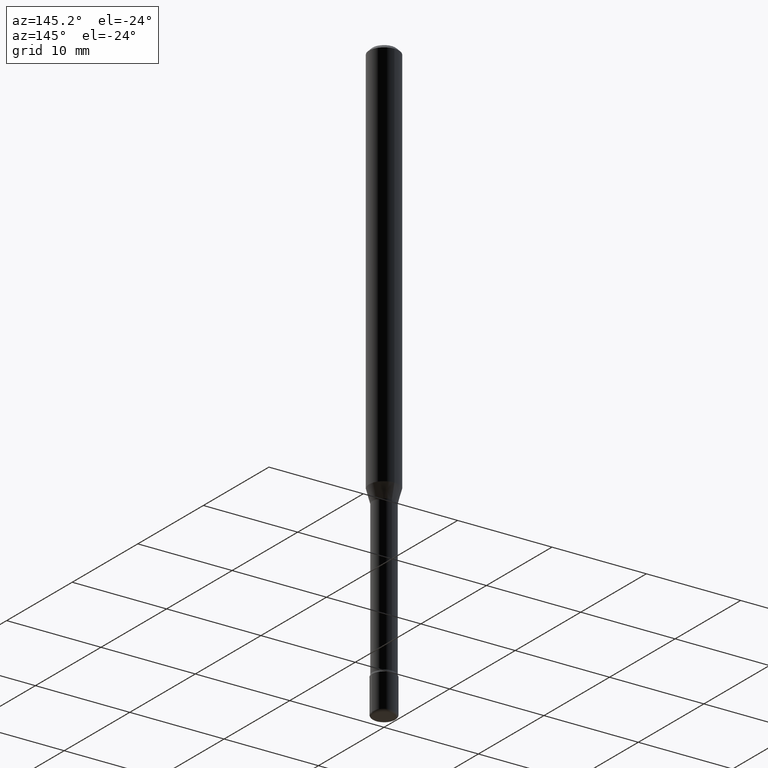
[diagram: clean part render]
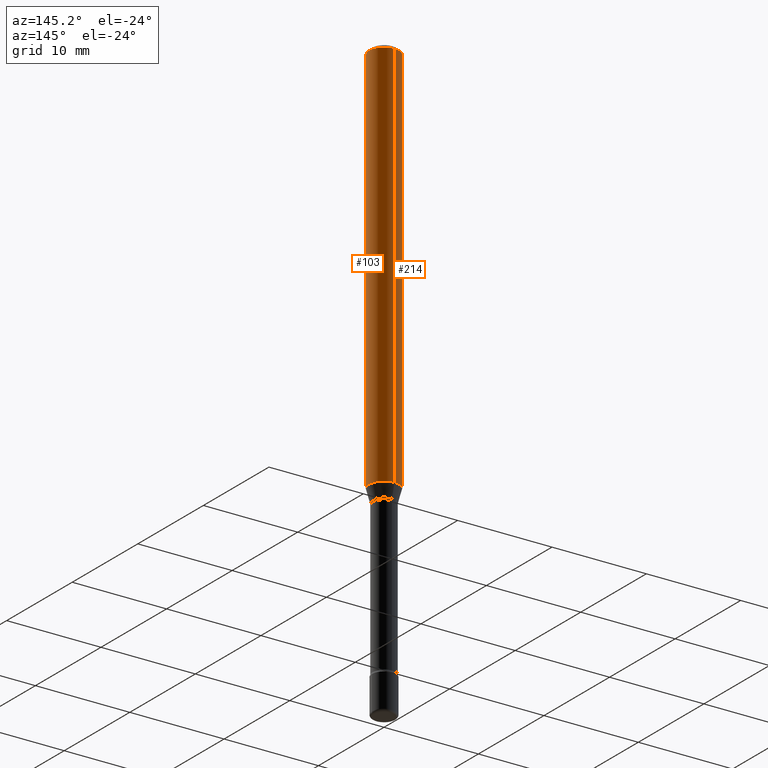
[diagram: same view with one multi-face feature highlighted, each face labeled with its STEP entity id]
A machine part, auxiliary view. The highlighted faces form ONE feature: a constant-radius fillet chain: 2 tangent blend faces with common blend radius 1.5875 mm. The faces share edges in the B-rep.
Their STEP definitions:
[1] entity #214 (Cylinder):
#1 = CARTESIAN_POINT ( 'NONE',  ( -1.169113584055446105E-44, 1.669184350826100908E-30, 4.780733988912460139E-16 ) ) ;
#38 = DIRECTION ( 'NONE',  ( -2.445541428082492260E-29, 3.491377340152750324E-15, 1.000000000000000000 ) ) ;
#88 = AXIS2_PLACEMENT_3D ( 'NONE', #1, #179, #345 ) ;
#90 = ORIENTED_EDGE ( 'NONE', *, *, #119, .T. ) ;
#92 = CARTESIAN_POINT ( 'NONE',  ( -4.364351673553912750E-16, -0.06250000000000005551, -0.01499999999999981036 ) ) ;
#119 = EDGE_CURVE ( 'NONE', #304, #502, #146, .T. ) ;
#146 = CIRCLE ( 'NONE', #325, 0.06250000000000000000 ) ;
#149 = CARTESIAN_POINT ( 'NONE',  ( -4.364351673553512403E-16, -0.06250000000000570377, -1.642153212482682312 ) ) ;
#160 = ORIENTED_EDGE ( 'NONE', *, *, #350, .F. ) ;
#179 = DIRECTION ( 'NONE',  ( -2.445541428082492260E-29, 3.491377340152750324E-15, 1.000000000000000000 ) ) ;
#214 = ADVANCED_FACE ( 'NONE', ( #440 ), #215, .T. ) ;
#215 = CYLINDRICAL_SURFACE ( 'NONE', #88, 0.06250000000000000000 ) ;
#226 = EDGE_CURVE ( 'NONE', #502, #248, #484, .T. ) ;
#248 = VERTEX_POINT ( 'NONE', #92 ) ;
#293 = EDGE_CURVE ( 'NONE', #304, #523, #370, .T. ) ;
#297 = DIRECTION ( 'NONE',  ( -2.445541428082492260E-29, 3.491377340152750324E-15, 1.000000000000000000 ) ) ;
#303 = DIRECTION ( 'NONE',  ( -6.982962677686265922E-15, -1.000000000000000000, 4.370956789862821150E-15 ) ) ;
#304 = VERTEX_POINT ( 'NONE', #459 ) ;
#315 = CARTESIAN_POINT ( 'NONE',  ( 3.668312142123745187E-31, -5.237066010229135864E-17, -0.01500000000000002720 ) ) ;
#325 = AXIS2_PLACEMENT_3D ( 'NONE', #398, #297, #303 ) ;
#326 = CARTESIAN_POINT ( 'NONE',  ( 4.440892098500625669E-16, 0.06250000000000000000, 2.598623151316991680E-16 ) ) ;
#333 = CARTESIAN_POINT ( 'NONE',  ( 4.440892098501030453E-16, 0.06249999999999995143, -0.01500000000000024578 ) ) ;
#342 = EDGE_LOOP ( 'NONE', ( #355, #90, #368, #160 ) ) ;
#345 = DIRECTION ( 'NONE',  ( -6.982962677686265922E-15, -1.000000000000000000, 3.491377340152751112E-15 ) ) ;
#350 = EDGE_CURVE ( 'NONE', #523, #248, #394, .T. ) ;
#355 = ORIENTED_EDGE ( 'NONE', *, *, #293, .F. ) ;
#368 = ORIENTED_EDGE ( 'NONE', *, *, #226, .T. ) ;
#370 = LINE ( 'NONE', #326, #539 ) ;
#380 = AXIS2_PLACEMENT_3D ( 'NONE', #315, #536, #533 ) ;
#394 = CIRCLE ( 'NONE', #380, 0.06250000000000000000 ) ;
#398 = CARTESIAN_POINT ( 'NONE',  ( 4.015953712385151571E-29, -5.733376515121082978E-15, -1.642153212482682756 ) ) ;
#417 = DIRECTION ( 'NONE',  ( -2.445541428082492260E-29, 3.491377340152750324E-15, 1.000000000000000000 ) ) ;
#419 = VECTOR ( 'NONE', #38, 39.37007874015748143 ) ;
#440 = FACE_OUTER_BOUND ( 'NONE', #342, .T. ) ;
#459 = CARTESIAN_POINT ( 'NONE',  ( 4.440892098501028481E-16, 0.06249999999999429623, -1.642153212482682978 ) ) ;
#484 = LINE ( 'NONE', #490, #419 ) ;
#490 = CARTESIAN_POINT ( 'NONE',  ( -4.364351673553916201E-16, -0.06250000000000000000, 6.962844826507930571E-16 ) ) ;
#502 = VERTEX_POINT ( 'NONE', #149 ) ;
#523 = VERTEX_POINT ( 'NONE', #333 ) ;
#533 = DIRECTION ( 'NONE',  ( -6.982962677686265922E-15, -1.000000000000000000, 3.483106191921935554E-15 ) ) ;
#536 = DIRECTION ( 'NONE',  ( -2.445541428082492260E-29, 3.491377340152750324E-15, 1.000000000000000000 ) ) ;
#539 = VECTOR ( 'NONE', #417, 39.37007874015748143 ) ;
[2] entity #103 (Cylinder):
#38 = DIRECTION ( 'NONE',  ( -2.445541428082492260E-29, 3.491377340152750324E-15, 1.000000000000000000 ) ) ;
#51 = DIRECTION ( 'NONE',  ( -6.982962677686265922E-15, -1.000000000000000000, 3.483106191921935554E-15 ) ) ;
#76 = CARTESIAN_POINT ( 'NONE',  ( -1.169113584055446105E-44, 1.669184350826100908E-30, 4.780733988912460139E-16 ) ) ;
#81 = DIRECTION ( 'NONE',  ( -2.445541428082492260E-29, 3.491377340152750324E-15, 1.000000000000000000 ) ) ;
#92 = CARTESIAN_POINT ( 'NONE',  ( -4.364351673553912750E-16, -0.06250000000000005551, -0.01499999999999981036 ) ) ;
#103 = ADVANCED_FACE ( 'NONE', ( #117 ), #482, .T. ) ;
#117 = FACE_OUTER_BOUND ( 'NONE', #488, .T. ) ;
#149 = CARTESIAN_POINT ( 'NONE',  ( -4.364351673553512403E-16, -0.06250000000000570377, -1.642153212482682312 ) ) ;
#158 = EDGE_CURVE ( 'NONE', #502, #304, #218, .T. ) ;
#166 = EDGE_CURVE ( 'NONE', #248, #523, #294, .T. ) ;
#212 = DIRECTION ( 'NONE',  ( -6.982962677686265922E-15, -1.000000000000000000, 3.491377340152751112E-15 ) ) ;
#218 = CIRCLE ( 'NONE', #237, 0.06250000000000000000 ) ;
#226 = EDGE_CURVE ( 'NONE', #502, #248, #484, .T. ) ;
#237 = AXIS2_PLACEMENT_3D ( 'NONE', #537, #256, #454 ) ;
#244 = AXIS2_PLACEMENT_3D ( 'NONE', #253, #81, #51 ) ;
#248 = VERTEX_POINT ( 'NONE', #92 ) ;
#249 = DIRECTION ( 'NONE',  ( -2.445541428082492260E-29, 3.491377340152750324E-15, 1.000000000000000000 ) ) ;
#253 = CARTESIAN_POINT ( 'NONE',  ( 3.668312142123745187E-31, -5.237066010229135864E-17, -0.01500000000000002720 ) ) ;
#256 = DIRECTION ( 'NONE',  ( -2.445541428082492260E-29, 3.491377340152750324E-15, 1.000000000000000000 ) ) ;
#273 = AXIS2_PLACEMENT_3D ( 'NONE', #76, #249, #212 ) ;
#293 = EDGE_CURVE ( 'NONE', #304, #523, #370, .T. ) ;
#294 = CIRCLE ( 'NONE', #244, 0.06250000000000000000 ) ;
#304 = VERTEX_POINT ( 'NONE', #459 ) ;
#326 = CARTESIAN_POINT ( 'NONE',  ( 4.440892098500625669E-16, 0.06250000000000000000, 2.598623151316991680E-16 ) ) ;
#333 = CARTESIAN_POINT ( 'NONE',  ( 4.440892098501030453E-16, 0.06249999999999995143, -0.01500000000000024578 ) ) ;
#370 = LINE ( 'NONE', #326, #539 ) ;
#417 = DIRECTION ( 'NONE',  ( -2.445541428082492260E-29, 3.491377340152750324E-15, 1.000000000000000000 ) ) ;
#419 = VECTOR ( 'NONE', #38, 39.37007874015748143 ) ;
#432 = ORIENTED_EDGE ( 'NONE', *, *, #226, .F. ) ;
#454 = DIRECTION ( 'NONE',  ( -6.982962677686265922E-15, -1.000000000000000000, 4.370956789862821150E-15 ) ) ;
#459 = CARTESIAN_POINT ( 'NONE',  ( 4.440892098501028481E-16, 0.06249999999999429623, -1.642153212482682978 ) ) ;
#482 = CYLINDRICAL_SURFACE ( 'NONE', #273, 0.06250000000000000000 ) ;
#484 = LINE ( 'NONE', #490, #419 ) ;
#488 = EDGE_LOOP ( 'NONE', ( #518, #568, #565, #432 ) ) ;
#490 = CARTESIAN_POINT ( 'NONE',  ( -4.364351673553916201E-16, -0.06250000000000000000, 6.962844826507930571E-16 ) ) ;
#502 = VERTEX_POINT ( 'NONE', #149 ) ;
#518 = ORIENTED_EDGE ( 'NONE', *, *, #158, .T. ) ;
#523 = VERTEX_POINT ( 'NONE', #333 ) ;
#537 = CARTESIAN_POINT ( 'NONE',  ( 4.015953712385151571E-29, -5.733376515121082978E-15, -1.642153212482682756 ) ) ;
#539 = VECTOR ( 'NONE', #417, 39.37007874015748143 ) ;
#565 = ORIENTED_EDGE ( 'NONE', *, *, #166, .F. ) ;
#568 = ORIENTED_EDGE ( 'NONE', *, *, #293, .T. ) ;